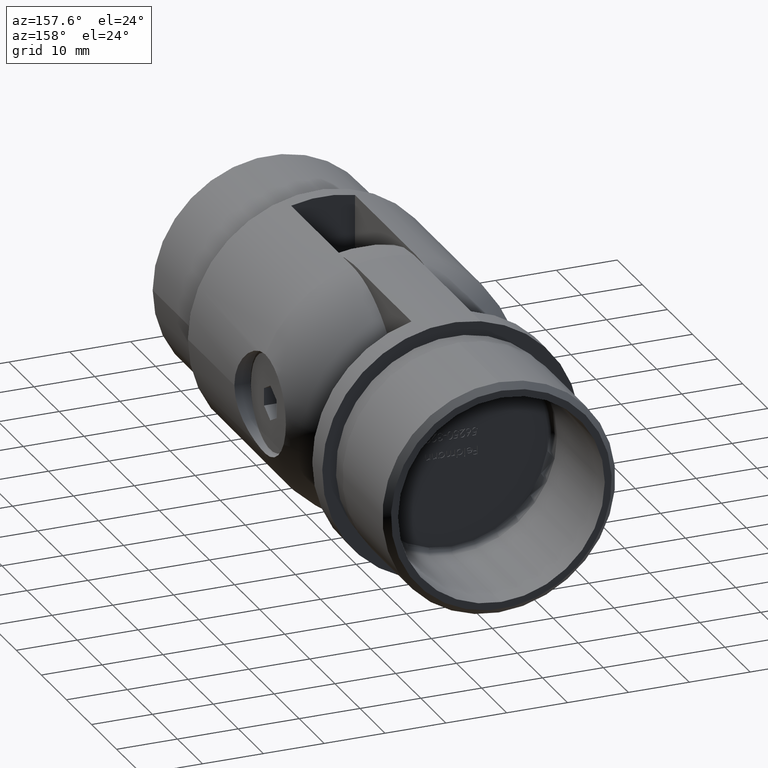
[diagram: clean part render]
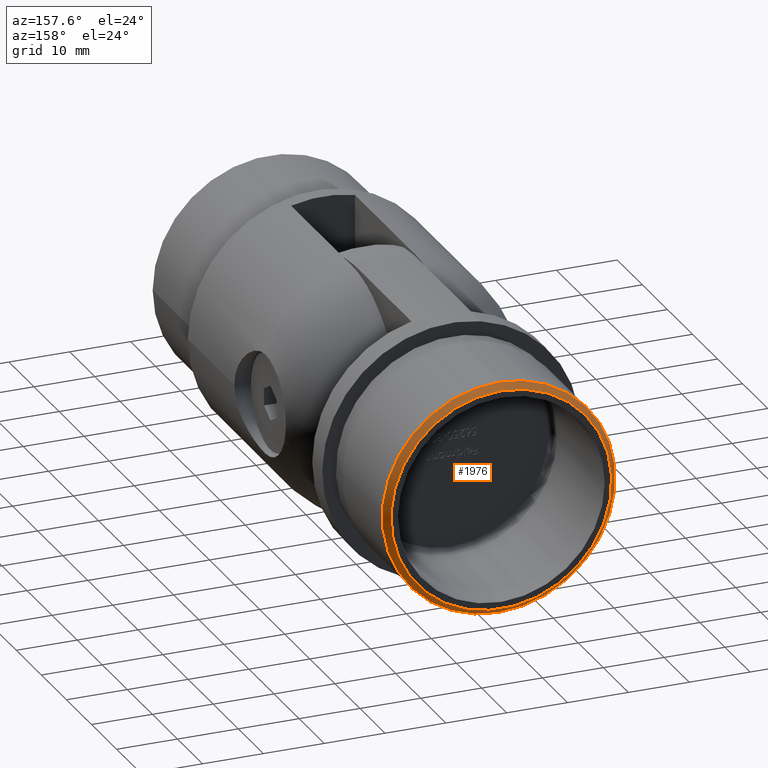
[diagram: same view with one face highlighted and labeled with its STEP entity id]
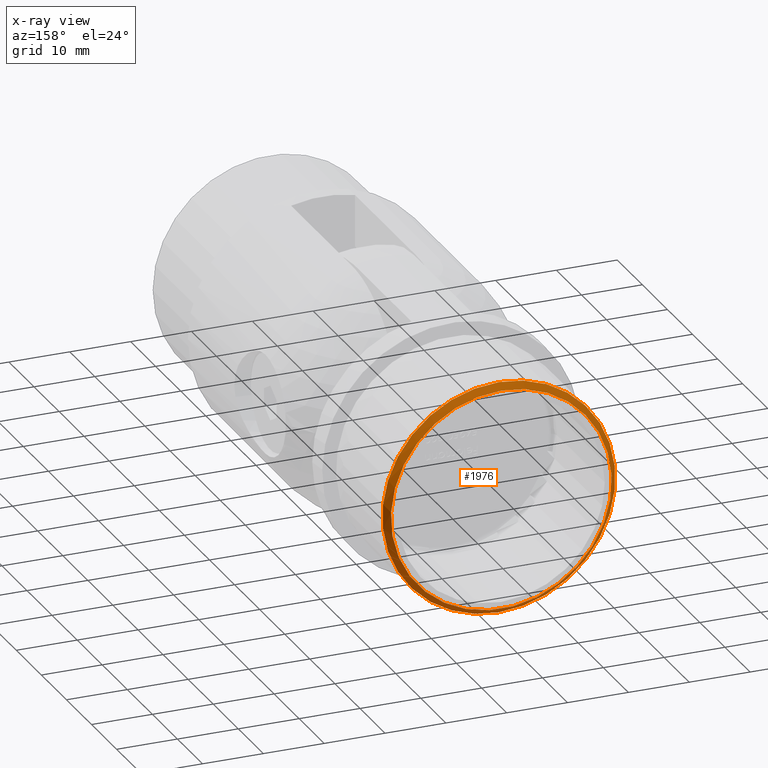
[diagram: x-ray of the same camera — body ghosted, the highlighted face saturated]
A machine part, auxiliary view. The second image highlights one B-rep face of the part: STEP entity #1976.
The next image is the same camera in x-ray: the body ghosted, the highlighted face saturated — about 0% of this face is hidden behind the body in this view.
In plain terms, the highlighted conical surface has half-angle 45 deg.
Its self-contained STEP definition (entity closure, byte-faithful):
#1976 = ADVANCED_FACE ( 'NONE', ( #12338, #14583 ), #11429, .T. ) ;
#2679 = DIRECTION ( 'NONE',  ( 0.0000000000000000000, 0.0000000000000000000, -1.000000000000000000 ) ) ;
#2804 = EDGE_LOOP ( 'NONE', ( #16472 ) ) ;
#3465 = VERTEX_POINT ( 'NONE', #12609 ) ;
#3527 = CARTESIAN_POINT ( 'NONE',  ( 0.0000000000000000000, -20.00000000000000000, 0.0000000000000000000 ) ) ;
#3749 = AXIS2_PLACEMENT_3D ( 'NONE', #8554, #14085, #2679 ) ;
#6005 = DIRECTION ( 'NONE',  ( 0.0000000000000000000, 1.000000000000000000, 0.0000000000000000000 ) ) ;
#7358 = EDGE_LOOP ( 'NONE', ( #15080 ) ) ;
#7880 = DIRECTION ( 'NONE',  ( 0.0000000000000000000, 1.000000000000000000, 0.0000000000000000000 ) ) ;
#8343 = AXIS2_PLACEMENT_3D ( 'NONE', #3527, #7880, #9327 ) ;
#8554 = CARTESIAN_POINT ( 'NONE',  ( 0.0000000000000000000, -20.00000000000000000, 0.0000000000000000000 ) ) ;
#8927 = DIRECTION ( 'NONE',  ( 0.0000000000000000000, 0.0000000000000000000, -1.000000000000000000 ) ) ;
#9327 = DIRECTION ( 'NONE',  ( 0.0000000000000000000, 0.0000000000000000000, 1.000000000000000000 ) ) ;
#9885 = AXIS2_PLACEMENT_3D ( 'NONE', #17234, #6005, #8927 ) ;
#10877 = VERTEX_POINT ( 'NONE', #11359 ) ;
#11359 = CARTESIAN_POINT ( 'NONE',  ( 0.0000000000000000000, -18.99999999999999600, -19.15000000000000200 ) ) ;
#11429 = CONICAL_SURFACE ( 'NONE', #8343, 18.15000000000000600, 0.7853981633974447300 ) ;
#12338 = FACE_OUTER_BOUND ( 'NONE', #7358, .T. ) ;
#12609 = CARTESIAN_POINT ( 'NONE',  ( 0.0000000000000000000, -20.00000000000000000, -18.15000000000000600 ) ) ;
#13114 = CIRCLE ( 'NONE', #9885, 19.15000000000000200 ) ;
#14085 = DIRECTION ( 'NONE',  ( 0.0000000000000000000, -1.000000000000000000, 0.0000000000000000000 ) ) ;
#14583 = FACE_BOUND ( 'NONE', #2804, .T. ) ;
#15080 = ORIENTED_EDGE ( 'NONE', *, *, #17901, .F. ) ;
#16472 = ORIENTED_EDGE ( 'NONE', *, *, #17773, .F. ) ;
#17234 = CARTESIAN_POINT ( 'NONE',  ( 0.0000000000000000000, -18.99999999999999600, 0.0000000000000000000 ) ) ;
#17773 = EDGE_CURVE ( 'NONE', #3465, #3465, #18556, .T. ) ;
#17901 = EDGE_CURVE ( 'NONE', #10877, #10877, #13114, .T. ) ;
#18556 = CIRCLE ( 'NONE', #3749, 18.15000000000000600 ) ;